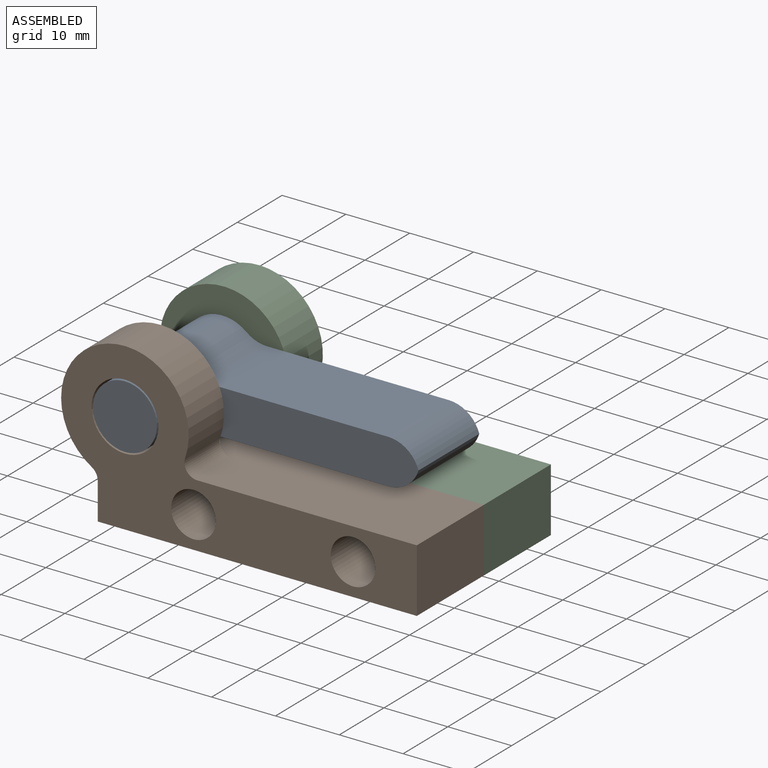
[diagram: assembled view]
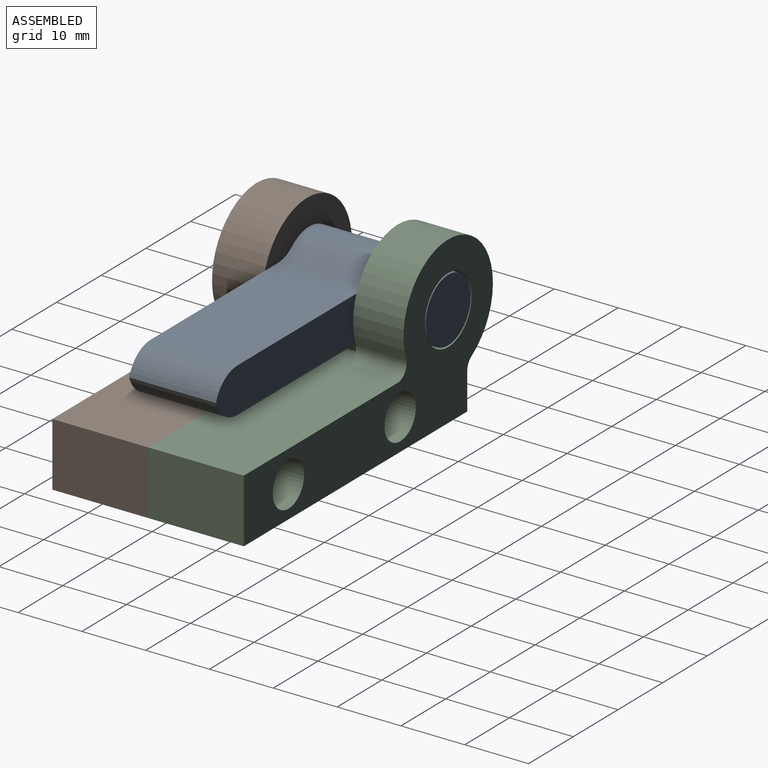
[diagram: assembled view, second angle]
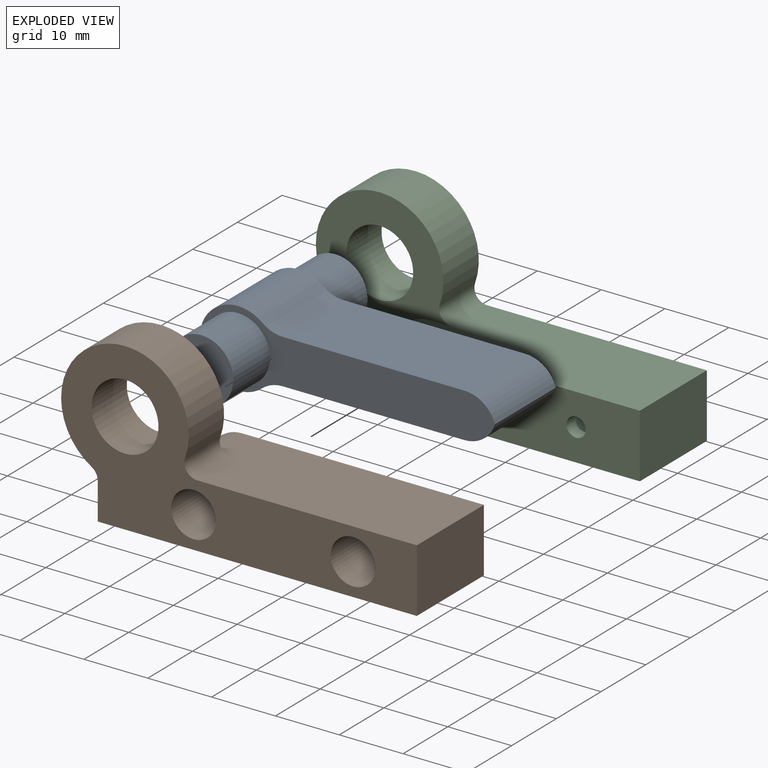
[diagram: exploded view]
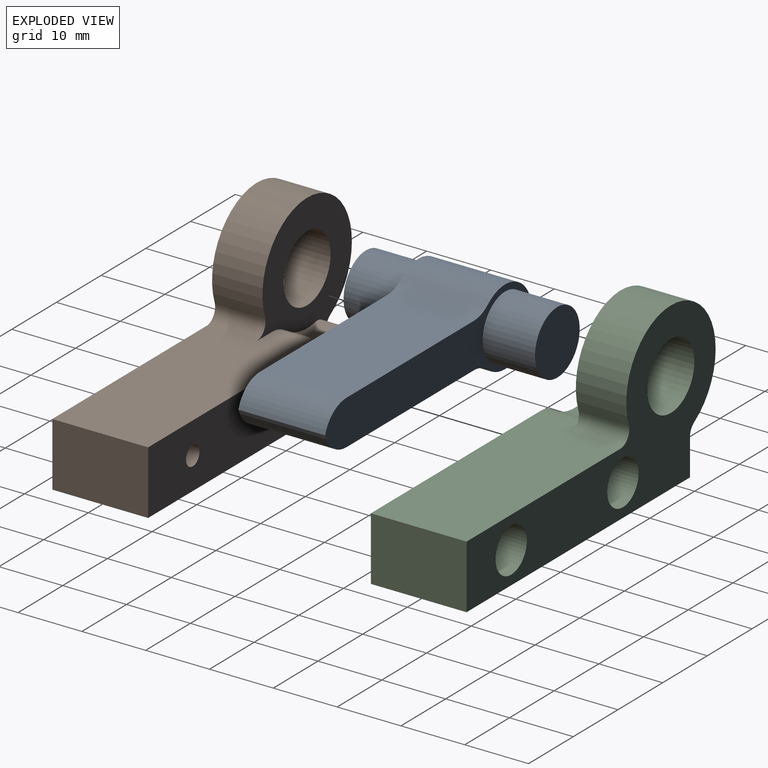
[diagram: exploded view, second angle]
ASSEMBLY  parts=3 mates=2
PART A: 13 faces, bbox 46.3x30x12 mm
  f0: plane 28.51x13.6mm, normal (0,0,-1), area 387.7mm2, adj f3,f4,f6,f10
  f1: plane 28.51x13.6mm, normal (0,0,1), area 387.7mm2, adj f3,f5,f7,f10
  f2: cylinder r=6mm len=13.6mm, axis (0,-1,0), area 368.6mm2, adj f3,f4,f7,f10
  f3: plane 46.26x12mm, normal (0,-1,0), area 269mm2, adj f0,f1,f2,f4,f5,f6,f7,f8
  f4: cylinder r=5mm len=13.6mm, axis (0,-1,0), area 46.8mm2, adj f0,f2,f3,f10
  f5: cylinder r=5mm len=13.6mm, axis (0,-1,0), area 86.1mm2, adj f1,f3,f6,f10
  f6: cylinder r=5mm len=13.6mm, axis (0,1,0), area 86.1mm2, adj f0,f3,f5,f10
  f7: cylinder r=5mm len=13.6mm, axis (0,-1,0), area 46.8mm2, adj f1,f2,f3,f10
  f8: cylinder r=5mm len=10mm, axis (0,-1,0), area 257.6mm2, adj f3,f9
  f9: plane 10x10mm, normal (0,-1,0), area 78.5mm2, adj f8
  f10: plane 46.26x12mm, normal (0,1,0), area 269mm2, adj f0,f1,f2,f4,f5,f6,f7,f11
  f11: cylinder r=5mm len=10mm, axis (0,1,0), area 257.6mm2, adj f10,f12
  f12: plane 10x10mm, normal (0,1,0), area 78.5mm2, adj f11
PART B: 20 faces, bbox 55.7x15x26 mm
  f0: cylinder r=1.5mm len=3mm, axis (0,-1,0), area 18.8mm2, adj f4,f15
  f1: cylinder r=1.5mm len=3mm, axis (0,-1,0), area 18.8mm2, adj f4,f13
  f2: plane 55.74x26mm, normal (0,-1,0), area 615mm2, adj f3,f5,f6,f7,f8,f9,f11,f12
  f3: plane 15x10mm, normal (1,0,0), area 150mm2, adj f2,f4,f6,f7
  f4: plane 50x10mm, normal (0,1,0), area 464.4mm2, adj f0,f1,f3,f5,f6,f7,f16,f17
  f5: plane 15x5.75mm, normal (-1,0,0), area 86.2mm2, adj f2,f4,f7,f17
  f6: plane 37.91x15mm, normal (0,0,1), area 541.1mm2, adj f2,f3,f4,f10,f11,f19
  f7: plane 50x15mm, normal (0,0,-1), area 750mm2, adj f2,f3,f4,f5
  f8: cylinder r=5.25mm len=10.5mm, axis (0,-1,0), area 260.6mm2, adj f2,f10
  f9: cylinder r=10mm len=20mm, axis (0,-1,0), area 355.7mm2, adj f2,f10,f11,f18
  f10: plane 21.31x20.24mm, normal (0,1,0), area 213.4mm2, adj f6,f8,f9,f11,f16,f17,f18,f19
  f11: cylinder r=2mm len=7.9mm, axis (0,-1,0), area 30.2mm2, adj f2,f6,f9,f10
  f12: cylinder r=3.5mm len=13mm, axis (0,-1,0), area 285.9mm2, adj f2,f13
  f13: plane 7x7mm, normal (0,-1,0), area 31.4mm2, adj f1,f12
  f14: cylinder r=3.5mm len=13mm, axis (0,-1,0), area 285.9mm2, adj f2,f15
  f15: plane 7x7mm, normal (0,-1,0), area 31.4mm2, adj f0,f14
  f16: cylinder r=8.5mm len=7.1mm, axis (0,1,0), area 50.4mm2, adj f4,f10,f17,f19
  f17: cylinder r=2mm len=15mm, axis (0,1,0), area 25.5mm2, adj f2,f4,f5,f10,f16,f18
  f18: cylinder r=2mm len=7.9mm, axis (0,1,0), area 16.2mm2, adj f2,f9,f10,f17
  f19: cylinder r=5mm len=7.1mm, axis (0,1,0), area 22mm2, adj f4,f6,f10,f16
PART C: 20 faces, bbox 55.7x15x26 mm
  f0: cylinder r=1.5mm len=3mm, axis (0,1,0), area 18.8mm2, adj f4,f15
  f1: cylinder r=1.5mm len=3mm, axis (0,1,0), area 18.8mm2, adj f4,f13
  f2: plane 55.74x26mm, normal (0,1,0), area 615mm2, adj f3,f5,f6,f7,f8,f9,f11,f12
  f3: plane 15x10mm, normal (1,0,0), area 150mm2, adj f2,f4,f6,f7
  f4: plane 50x10mm, normal (0,-1,0), area 464.4mm2, adj f0,f1,f3,f5,f6,f7,f16,f17
  f5: plane 15x5.75mm, normal (-1,0,0), area 86.2mm2, adj f2,f4,f7,f17
  f6: plane 37.91x15mm, normal (0,0,1), area 541.1mm2, adj f2,f3,f4,f10,f11,f19
  f7: plane 50x15mm, normal (0,0,-1), area 750mm2, adj f2,f3,f4,f5
  f8: cylinder r=5.25mm len=10.5mm, axis (0,1,0), area 260.6mm2, adj f2,f10
  f9: cylinder r=10mm len=20mm, axis (0,1,0), area 355.7mm2, adj f2,f10,f11,f18
  f10: plane 21.31x20.24mm, normal (0,-1,0), area 213.4mm2, adj f6,f8,f9,f11,f16,f17,f18,f19
  f11: cylinder r=2mm len=7.9mm, axis (0,1,0), area 30.2mm2, adj f2,f6,f9,f10
  f12: cylinder r=3.5mm len=13mm, axis (0,1,0), area 285.9mm2, adj f2,f13
  f13: plane 7x7mm, normal (0,1,0), area 31.4mm2, adj f1,f12
  f14: cylinder r=3.5mm len=13mm, axis (0,1,0), area 285.9mm2, adj f2,f15
  f15: plane 7x7mm, normal (0,1,0), area 31.4mm2, adj f0,f14
  f16: cylinder r=8.5mm len=7.1mm, axis (0,-1,0), area 50.4mm2, adj f4,f10,f17,f19
  f17: cylinder r=2mm len=15mm, axis (0,-1,0), area 25.5mm2, adj f2,f4,f5,f10,f16,f18
  f18: cylinder r=2mm len=7.9mm, axis (0,-1,0), area 16.2mm2, adj f2,f9,f10,f17
  f19: cylinder r=5mm len=7.1mm, axis (0,-1,0), area 22mm2, adj f4,f6,f10,f16
PLACE A t=(-7.02,8.48,35.59)mm
PLACE B t=(13.71,8.48,19.59)mm
PLACE C t=(13.71,8.48,19.59)mm
MATE revolute B.f8 <-> A.f8  axis (0,-1,0) through (-7.02,-6.52,35.59)mm
MATE fastened B.f4 <-> C.f4  axis (0,1,0) through (14.59,8.48,24.41)mm
